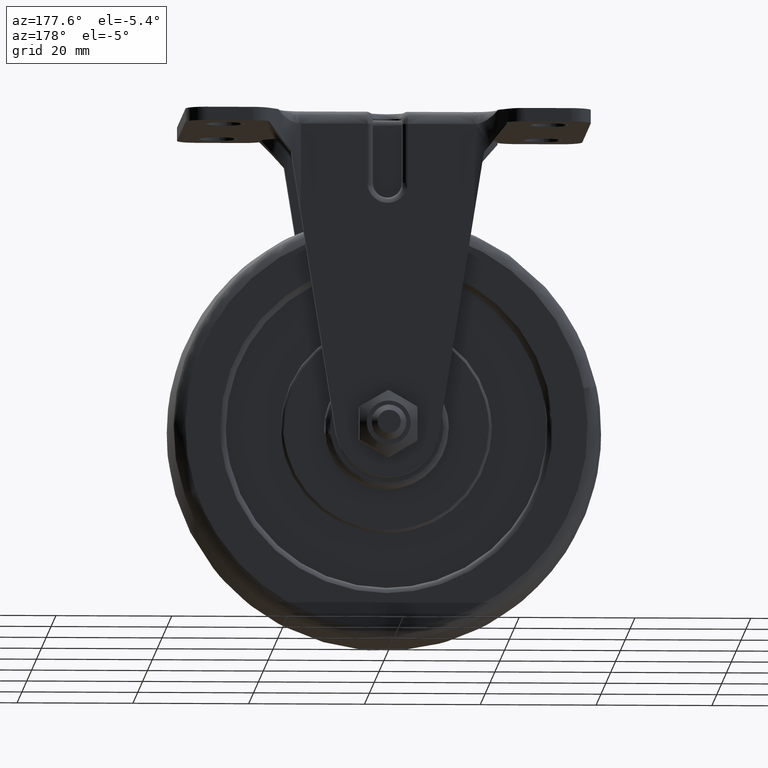
[diagram: clean part render]
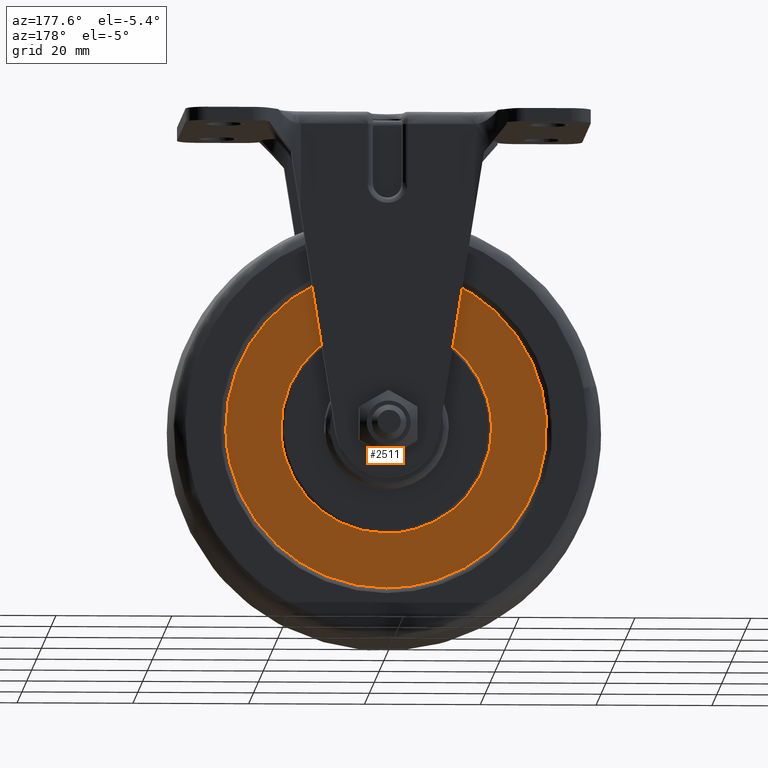
[diagram: same view with one face highlighted and labeled with its STEP entity id]
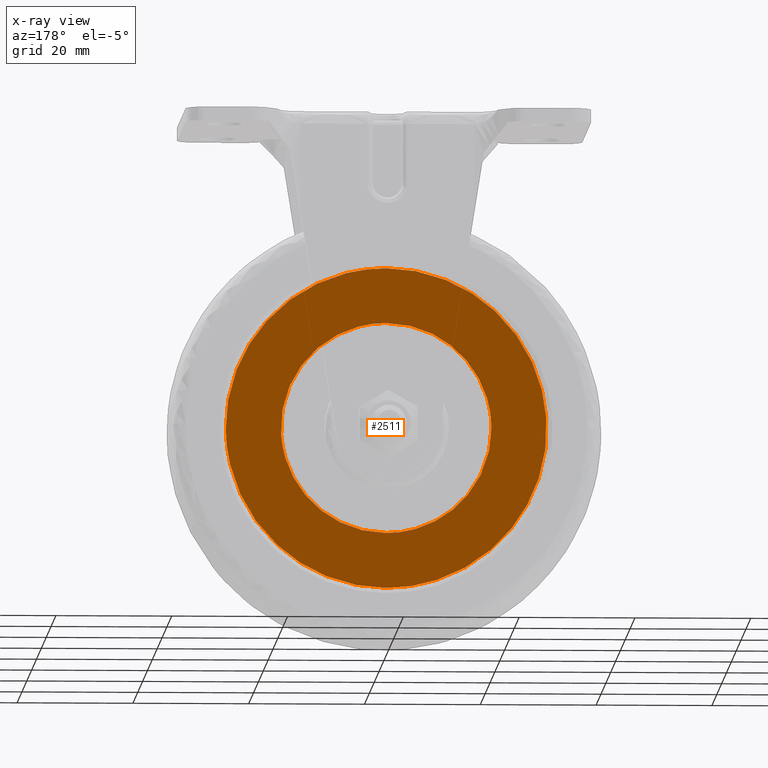
[diagram: x-ray of the same camera — body ghosted, the highlighted face saturated]
A machine part, auxiliary view. The second image highlights one B-rep face of the part: STEP entity #2511.
The next image is the same camera in x-ray: the body ghosted, the highlighted face saturated — about 0% of this face is hidden behind the body in this view.
In plain terms, the highlighted face is a freeform B-spline surface patch.
Its self-contained STEP definition (entity closure, byte-faithful):
#1439=CARTESIAN_POINT('',(-18.198564004429251,9.500000311330659,0.228701938526418));
#1440=VERTEX_POINT('',#1439);
#1454=CARTESIAN_POINT('',(0.0,9.500000000000119,18.200001000000000));
#1455=VERTEX_POINT('',#1454);
#1456=CARTESIAN_POINT('',(0.0,9.500000000000119,18.200001000000000));
#1457=CARTESIAN_POINT('',(-17.972718111660392,9.500000000000121,18.200000999999997));
#1458=CARTESIAN_POINT('',(-18.198564004429247,9.500000311330659,0.228701938526418));
#1466=(BOUNDED_CURVE()B_SPLINE_CURVE(2,(#1456,#1457,#1458),.UNSPECIFIED.,.F.,.U.)B_SPLINE_CURVE_WITH_KNOTS((3,3),(0.500000000000000,0.747784295920117),.UNSPECIFIED.)CURVE()GEOMETRIC_REPRESENTATION_ITEM()RATIONAL_B_SPLINE_CURVE((1.0,0.709702639986128,0.994854295640304))REPRESENTATION_ITEM(''));
#1467=EDGE_CURVE('',#1455,#1440,#1466,.T.);
#1469=CARTESIAN_POINT('',(18.155696261460861,9.500000311330833,-1.269145248413198));
#1470=VERTEX_POINT('',#1469);
#1471=CARTESIAN_POINT('',(18.155696261460864,9.500000311330833,-1.269145248413198));
#1472=CARTESIAN_POINT('',(18.200000999999997,9.500000000000117,-0.635345943835813));
#1473=CARTESIAN_POINT('',(18.200001000000000,9.500000000000119,1.211545E-015));
#1474=CARTESIAN_POINT('',(18.200001000000004,9.500000000000119,18.200001000000004));
#1475=CARTESIAN_POINT('',(0.0,9.500000000000119,18.200001000000000));
#1483=(BOUNDED_CURVE()B_SPLINE_CURVE(2,(#1471,#1472,#1473,#1474,#1475),.UNSPECIFIED.,.F.,.U.)B_SPLINE_CURVE_WITH_KNOTS((3,2,3),(0.237833686535004,0.250000000000000,0.500000000000000),.UNSPECIFIED.)CURVE()GEOMETRIC_REPRESENTATION_ITEM()RATIONAL_B_SPLINE_CURVE((0.972879876386789,0.985746277152575,1.0,0.707106781186548,1.0))REPRESENTATION_ITEM(''));
#1484=EDGE_CURVE('',#1470,#1455,#1483,.T.);
#1541=CARTESIAN_POINT('',(0.0,9.500000000000119,-18.200001000000000));
#1542=VERTEX_POINT('',#1541);
#1543=CARTESIAN_POINT('',(0.0,9.500000000000119,-18.200001000000000));
#1544=CARTESIAN_POINT('',(16.972171552776345,9.500000000000119,-18.200001000000000));
#1545=CARTESIAN_POINT('',(18.155696261460868,9.500000311330835,-1.269145248413198));
#1553=(BOUNDED_CURVE()B_SPLINE_CURVE(2,(#1543,#1544,#1545),.UNSPECIFIED.,.F.,.U.)B_SPLINE_CURVE_WITH_KNOTS((3,3),(0.0,0.237833686535003),.UNSPECIFIED.)CURVE()GEOMETRIC_REPRESENTATION_ITEM()RATIONAL_B_SPLINE_CURVE((1.0,0.721360504033973,0.972879876386789))REPRESENTATION_ITEM(''));
#1554=EDGE_CURVE('',#1542,#1470,#1553,.T.);
#1556=CARTESIAN_POINT('',(-18.198564004429254,9.500000311330659,0.228701938526418));
#1557=CARTESIAN_POINT('',(-18.200000999999997,9.500000000000119,0.114355483819042));
#1558=CARTESIAN_POINT('',(-18.200001000000000,9.500000000000119,1.211545E-015));
#1559=CARTESIAN_POINT('',(-18.200001000000004,9.500000000000119,-18.200001000000004));
#1560=CARTESIAN_POINT('',(0.0,9.500000000000119,-18.200001000000000));
#1568=(BOUNDED_CURVE()B_SPLINE_CURVE(2,(#1556,#1557,#1558,#1559,#1560),.UNSPECIFIED.,.F.,.U.)B_SPLINE_CURVE_WITH_KNOTS((3,2,3),(0.747784295920117,0.750000000000000,1.0),.UNSPECIFIED.)CURVE()GEOMETRIC_REPRESENTATION_ITEM()RATIONAL_B_SPLINE_CURVE((0.994854295640304,0.997404141200420,1.0,0.707106781186548,1.0))REPRESENTATION_ITEM(''));
#1569=EDGE_CURVE('',#1440,#1542,#1568,.T.);
#1619=CARTESIAN_POINT('',(-27.632570162942979,9.500000000735859,1.931611138411135));
#1620=VERTEX_POINT('',#1619);
#1621=CARTESIAN_POINT('',(0.0,9.499999999999890,-27.700001000000000));
#1622=VERTEX_POINT('',#1621);
#1623=CARTESIAN_POINT('',(-27.632570162942979,9.500000000735859,1.931611138411135));
#1624=CARTESIAN_POINT('',(-27.700001000000000,9.499999999999888,0.966982544676904));
#1625=CARTESIAN_POINT('',(-27.700001000000000,9.499999999999890,1.211545E-015));
#1626=CARTESIAN_POINT('',(-27.700001000000000,9.499999999999890,-27.700001000000000));
#1627=CARTESIAN_POINT('',(0.0,9.499999999999890,-27.700001000000000));
#1635=(BOUNDED_CURVE()B_SPLINE_CURVE(2,(#1623,#1624,#1625,#1626,#1627),.UNSPECIFIED.,.F.,.U.)B_SPLINE_CURVE_WITH_KNOTS((3,2,3),(0.737833686534660,0.750000000000000,1.0),.UNSPECIFIED.)CURVE()GEOMETRIC_REPRESENTATION_ITEM()RATIONAL_B_SPLINE_CURVE((0.972879876386063,0.985746277152172,1.0,0.707106781186548,1.0))REPRESENTATION_ITEM(''));
#1636=EDGE_CURVE('',#1620,#1622,#1635,.T.);
#1638=CARTESIAN_POINT('',(27.697813924366368,9.500000000720196,-0.348079317365087));
#1639=VERTEX_POINT('',#1638);
#1640=CARTESIAN_POINT('',(0.0,9.499999999999890,-27.700001000000000));
#1641=CARTESIAN_POINT('',(27.354081445884923,9.499999999999890,-27.700000999999990));
#1642=CARTESIAN_POINT('',(27.697813924366365,9.500000000720196,-0.348079317365087));
#1650=(BOUNDED_CURVE()B_SPLINE_CURVE(2,(#1640,#1641,#1642),.UNSPECIFIED.,.F.,.U.)B_SPLINE_CURVE_WITH_KNOTS((3,3),(0.0,0.247784295921345),.UNSPECIFIED.)CURVE()GEOMETRIC_REPRESENTATION_ITEM()RATIONAL_B_SPLINE_CURVE((1.0,0.709702639984689,0.994854295643130))REPRESENTATION_ITEM(''));
#1651=EDGE_CURVE('',#1622,#1639,#1650,.T.);
#1739=CARTESIAN_POINT('',(0.0,9.499999999999890,27.700001000000000));
#1740=VERTEX_POINT('',#1739);
#1741=CARTESIAN_POINT('',(0.0,9.499999999999890,27.700001000000000));
#1742=CARTESIAN_POINT('',(-25.831271601750881,9.499999999999890,27.700000999999990));
#1743=CARTESIAN_POINT('',(-27.632570162942987,9.500000000735859,1.931611138411135));
#1751=(BOUNDED_CURVE()B_SPLINE_CURVE(2,(#1741,#1742,#1743),.UNSPECIFIED.,.F.,.U.)B_SPLINE_CURVE_WITH_KNOTS((3,3),(0.500000000000000,0.737833686534661),.UNSPECIFIED.)CURVE()GEOMETRIC_REPRESENTATION_ITEM()RATIONAL_B_SPLINE_CURVE((1.0,0.721360504034374,0.972879876386065))REPRESENTATION_ITEM(''));
#1752=EDGE_CURVE('',#1740,#1620,#1751,.T.);
#1786=CARTESIAN_POINT('',(27.697813924366365,9.500000000720196,-0.348079317365087));
#1787=CARTESIAN_POINT('',(27.700001000000000,9.499999999999890,-0.174046529688797));
#1788=CARTESIAN_POINT('',(27.700001000000000,9.499999999999890,1.211545E-015));
#1789=CARTESIAN_POINT('',(27.700001000000000,9.499999999999890,27.700001000000000));
#1790=CARTESIAN_POINT('',(0.0,9.499999999999890,27.700001000000000));
#1798=(BOUNDED_CURVE()B_SPLINE_CURVE(2,(#1786,#1787,#1788,#1789,#1790),.UNSPECIFIED.,.F.,.U.)B_SPLINE_CURVE_WITH_KNOTS((3,2,3),(0.247784295921345,0.250000000000000,0.500000000000000),.UNSPECIFIED.)CURVE()GEOMETRIC_REPRESENTATION_ITEM()RATIONAL_B_SPLINE_CURVE((0.994854295643130,0.997404141201859,1.0,0.707106781186548,1.0))REPRESENTATION_ITEM(''));
#1799=EDGE_CURVE('',#1639,#1740,#1798,.T.);
#2494=CARTESIAN_POINT('',(-30.463804964299101,9.500000000000000,-30.467230992524041));
#2495=CARTESIAN_POINT('',(-30.463804964299101,9.500000000000000,30.467232478467889));
#2496=CARTESIAN_POINT('',(30.464774215933321,9.500000000000000,-30.467230992524041));
#2497=CARTESIAN_POINT('',(30.464774215933321,9.500000000000000,30.467232478467889));
#2498=B_SPLINE_SURFACE_WITH_KNOTS('',1,1,((#2494,#2496),(#2495,#2497)),.UNSPECIFIED.,.F.,.F.,.U.,(2,2),(2,2),(0.0,60.934463470991943),(0.0,60.928579180232411),.UNSPECIFIED.);
#2499=ORIENTED_EDGE('',*,*,#1636,.F.);
#2500=ORIENTED_EDGE('',*,*,#1752,.F.);
#2501=ORIENTED_EDGE('',*,*,#1799,.F.);
#2502=ORIENTED_EDGE('',*,*,#1651,.F.);
#2503=EDGE_LOOP('',(#2499,#2500,#2501,#2502));
#2504=FACE_OUTER_BOUND('',#2503,.T.);
#2505=ORIENTED_EDGE('',*,*,#1467,.T.);
#2506=ORIENTED_EDGE('',*,*,#1569,.T.);
#2507=ORIENTED_EDGE('',*,*,#1554,.T.);
#2508=ORIENTED_EDGE('',*,*,#1484,.T.);
#2509=EDGE_LOOP('',(#2505,#2506,#2507,#2508));
#2510=FACE_BOUND('',#2509,.T.);
#2511=ADVANCED_FACE('',(#2504,#2510),#2498,.T.);